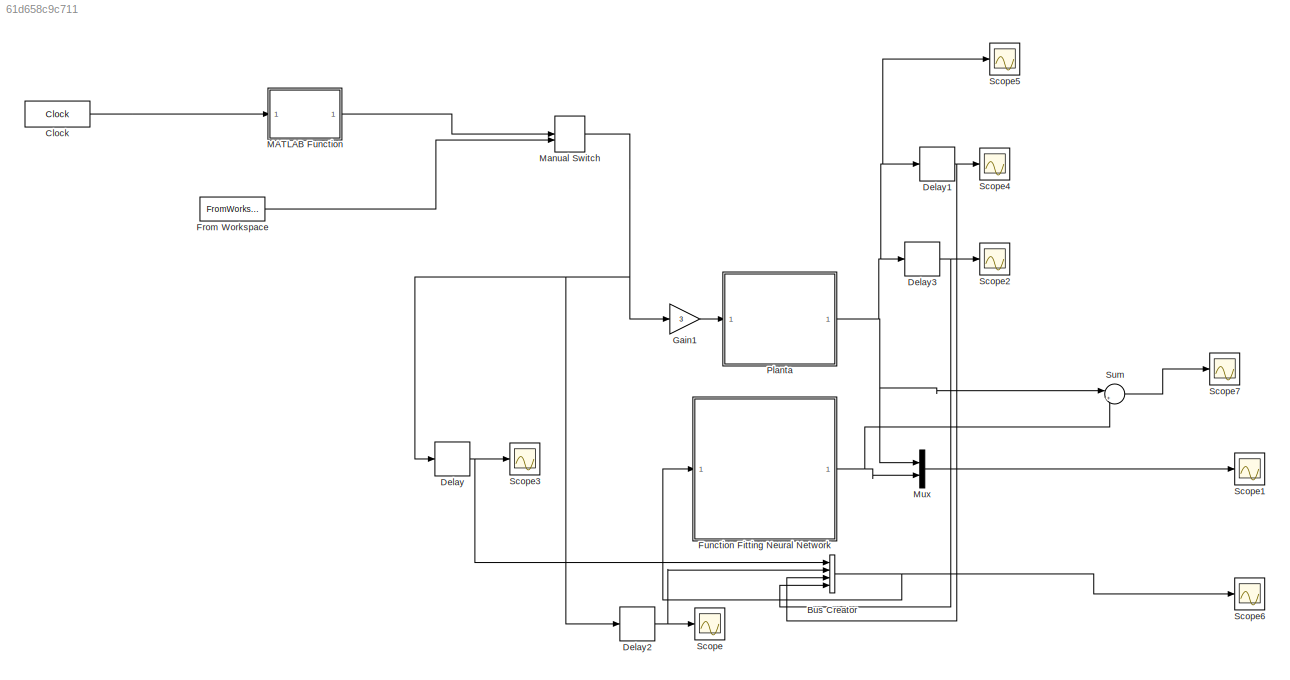
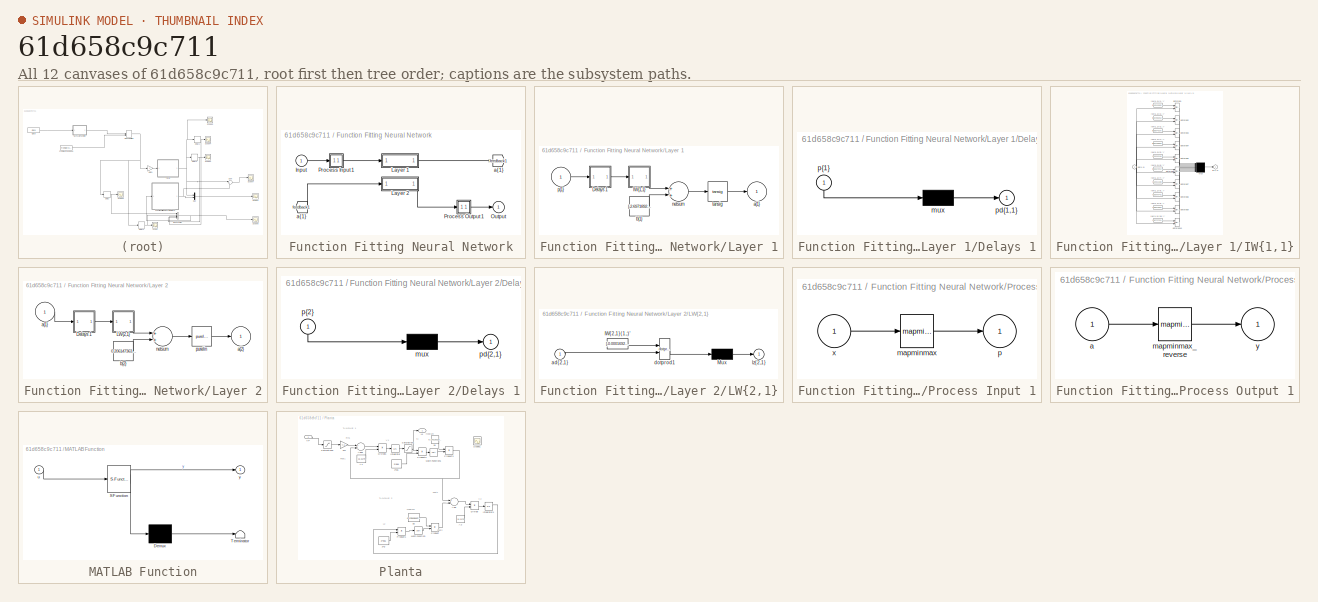
[diagram: thumbnail index - all 12 canvases of the model, root first then tree order]
MODEL slx_61d658c9c711
KIND model
CONFIG AbsTol = auto
CONFIG EnableMultiTasking = on
CONFIG FixedStep = 0.2
CONFIG MaxStep = auto
CONFIG MinStep = auto
CONFIG RelTol = 1e-3
CONFIG SampleTimeConstraint = Unconstrained
CONFIG Solver = FixedStepAuto
CONFIG SolverName = FixedStepAuto
CONFIG StartTime = 0.0
CONFIG StopTime = 10000
BLOCK [BusCreator] Bus Creator
  DisplayOption = bar
  InheritFromInputs = on
  Inputs = 4
  Ports = [4, 1]
BLOCK [Clock] Clock
  DisplayTime = on
BLOCK [Delay] Delay
  InitialCondition = 0
  InputPortMap = u0
  Ports = [1, 1]
BLOCK [Delay] Delay1
  InitialCondition = 0
  InputPortMap = u0
  Ports = [1, 1]
BLOCK [Delay] Delay2
  DelayLength = 1
  InitialCondition = 0
  InputPortMap = u0
  Ports = [1, 1]
BLOCK [Delay] Delay3
  DelayLength = 1
  InitialCondition = 0
  InputPortMap = u0
  Ports = [1, 1]
BLOCK [FromWorkspace] From Workspace
  SampleTime = 0
  VariableName = signal_struct
  ZeroCross = on
BLOCK [SubSystem] Function Fitting Neural Network
  Ports = [1, 1]
  RequestExecContextInheritance = off
  Variant = off
BLOCK [From] Function Fitting Neural Network/ a{1} 
  GotoTag = feedback1
BLOCK [Inport] Function Fitting Neural Network/Input
  IconDisplay = Port number
  PortDimensions = 4
BLOCK [SubSystem] Function Fitting Neural Network/Layer 1
  Ports = [1, 1]
  RequestExecContextInheritance = off
  Variant = off
BLOCK [SubSystem] Function Fitting Neural Network/Layer 1/Delays 1
  Ports = [1, 1]
  RequestExecContextInheritance = off
  Variant = off
BLOCK [Mux] Function Fitting Neural Network/Layer 1/Delays 1/mux
  Inputs = 1
  Ports = [1, 1]
BLOCK [Outport] Function Fitting Neural Network/Layer 1/Delays 1/pd{1,1}
  IconDisplay = Port number
BLOCK [Inport] Function Fitting Neural Network/Layer 1/Delays 1/p{1}
  IconDisplay = Port number
  PortDimensions = 4
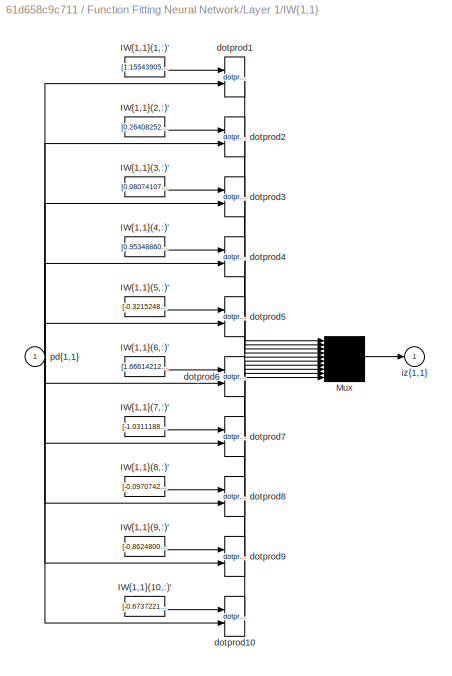
BLOCK [SubSystem] Function Fitting Neural Network/Layer 1/IW{1,1}
  Ports = [1, 1]
  RequestExecContextInheritance = off
  Variant = off
BLOCK [Constant] Function Fitting Neural Network/Layer 1/IW{1,1}/IW{1,1}(1,:)'
  Value = [1.1554390511201138;-1.8587518100061147;-0.1826285836356358;-1.1769062165732727]
BLOCK [Constant] Function Fitting Neural Network/Layer 1/IW{1,1}/IW{1,1}(10,:)'
  Value = [-0.67372211490125289;-2.0320906584328977;-1.1185733300726743;0.17942890660562086]
BLOCK [Constant] Function Fitting Neural Network/Layer 1/IW{1,1}/IW{1,1}(2,:)'
  Value = [0.26408252248880792;-0.19008344865909826;-1.3902923968655674;-0.27348600873152462]
BLOCK [Constant] Function Fitting Neural Network/Layer 1/IW{1,1}/IW{1,1}(3,:)'
  Value = [0.080741076316561772;-0.043698941983076868;-1.3949334431954188;0.94707719851262062]
BLOCK [Constant] Function Fitting Neural Network/Layer 1/IW{1,1}/IW{1,1}(4,:)'
  Value = [0.9534886023856961;-0.69194511398118685;1.512048816179554;-0.035706276300662435]
BLOCK [Constant] Function Fitting Neural Network/Layer 1/IW{1,1}/IW{1,1}(5,:)'
  Value = [-0.32152483049860753;0.19273825728909916;0.8548731041341191;-1.328618021087864]
BLOCK [Constant] Function Fitting Neural Network/Layer 1/IW{1,1}/IW{1,1}(6,:)'
  Value = [1.6661421235684524;-0.92893210679011906;1.3255465429769948;1.3658132609740954]
BLOCK [Constant] Function Fitting Neural Network/Layer 1/IW{1,1}/IW{1,1}(7,:)'
  Value = [-1.0311188521042554;0.6850486544127149;-1.1679875574701173;-0.38087349012047139]
BLOCK [Constant] Function Fitting Neural Network/Layer 1/IW{1,1}/IW{1,1}(8,:)'
  Value = [-0.097074226434714;0.1073578737696482;-0.92300508025662875;1.4479048523652209]
BLOCK [Constant] Function Fitting Neural Network/Layer 1/IW{1,1}/IW{1,1}(9,:)'
  Value = [-0.86248006445668224;0.6055788325390703;-1.9687748498055084;0.61981167689507055]
BLOCK [Mux] Function Fitting Neural Network/Layer 1/IW{1,1}/Mux
  Inputs = 10
  Ports = [10, 1]
BLOCK [Reference] Function Fitting Neural Network/Layer 1/IW{1,1}/dotprod1  REF=neural/Weight Functions/dotprod
  Ports = [2, 1]
  SourceBlock = neural/Weight Functions/dotprod
  SourceProductBaseCode = NN
  SourceProductName = Neural Network Toolbox
  SourceType = DOTPROD
BLOCK [Reference] Function Fitting Neural Network/Layer 1/IW{1,1}/dotprod10  REF=neural/Weight Functions/dotprod
  Ports = [2, 1]
  SourceBlock = neural/Weight Functions/dotprod
  SourceProductBaseCode = NN
  SourceProductName = Neural Network Toolbox
  SourceType = DOTPROD
BLOCK [Reference] Function Fitting Neural Network/Layer 1/IW{1,1}/dotprod2  REF=neural/Weight Functions/dotprod
  Ports = [2, 1]
  SourceBlock = neural/Weight Functions/dotprod
  SourceProductBaseCode = NN
  SourceProductName = Neural Network Toolbox
  SourceType = DOTPROD
BLOCK [Reference] Function Fitting Neural Network/Layer 1/IW{1,1}/dotprod3  REF=neural/Weight Functions/dotprod
  Ports = [2, 1]
  SourceBlock = neural/Weight Functions/dotprod
  SourceProductBaseCode = NN
  SourceProductName = Neural Network Toolbox
  SourceType = DOTPROD
BLOCK [Reference] Function Fitting Neural Network/Layer 1/IW{1,1}/dotprod4  REF=neural/Weight Functions/dotprod
  Ports = [2, 1]
  SourceBlock = neural/Weight Functions/dotprod
  SourceProductBaseCode = NN
  SourceProductName = Neural Network Toolbox
  SourceType = DOTPROD
BLOCK [Reference] Function Fitting Neural Network/Layer 1/IW{1,1}/dotprod5  REF=neural/Weight Functions/dotprod
  Ports = [2, 1]
  SourceBlock = neural/Weight Functions/dotprod
  SourceProductBaseCode = NN
  SourceProductName = Neural Network Toolbox
  SourceType = DOTPROD
BLOCK [Reference] Function Fitting Neural Network/Layer 1/IW{1,1}/dotprod6  REF=neural/Weight Functions/dotprod
  Ports = [2, 1]
  SourceBlock = neural/Weight Functions/dotprod
  SourceProductBaseCode = NN
  SourceProductName = Neural Network Toolbox
  SourceType = DOTPROD
BLOCK [Reference] Function Fitting Neural Network/Layer 1/IW{1,1}/dotprod7  REF=neural/Weight Functions/dotprod
  Ports = [2, 1]
  SourceBlock = neural/Weight Functions/dotprod
  SourceProductBaseCode = NN
  SourceProductName = Neural Network Toolbox
  SourceType = DOTPROD
BLOCK [Reference] Function Fitting Neural Network/Layer 1/IW{1,1}/dotprod8  REF=neural/Weight Functions/dotprod
  Ports = [2, 1]
  SourceBlock = neural/Weight Functions/dotprod
  SourceProductBaseCode = NN
  SourceProductName = Neural Network Toolbox
  SourceType = DOTPROD
BLOCK [Reference] Function Fitting Neural Network/Layer 1/IW{1,1}/dotprod9  REF=neural/Weight Functions/dotprod
  Ports = [2, 1]
  SourceBlock = neural/Weight Functions/dotprod
  SourceProductBaseCode = NN
  SourceProductName = Neural Network Toolbox
  SourceType = DOTPROD
BLOCK [Outport] Function Fitting Neural Network/Layer 1/IW{1,1}/iz{1,1}
  IconDisplay = Port number
BLOCK [Inport] Function Fitting Neural Network/Layer 1/IW{1,1}/pd{1,1}
  IconDisplay = Port number
  PortDimensions = 4
BLOCK [Outport] Function Fitting Neural Network/Layer 1/a{1}
  IconDisplay = Port number
  InitialOutput = [0;0;0;0;0;0;0;0;0;0]
BLOCK [Constant] Function Fitting Neural Network/Layer 1/b{1}
  Value = [-2.6971892401045712;-2.58812922836937;-0.42369525393465973;-1.2876822611119172;0.48355685475030985;0.093977343034396671;-0.85672853052520714;-0.96988345575553236;-1.8365294154329086;-2.6712107734220192]
BLOCK [Sum] Function Fitting Neural Network/Layer 1/netsum
  Inputs = 2
  Ports = [2, 1]
BLOCK [Inport] Function Fitting Neural Network/Layer 1/p{1}
  IconDisplay = Port number
  PortDimensions = 4
BLOCK [Reference] Function Fitting Neural Network/Layer 1/tansig  REF=neural/Transfer Functions/tansig
  Ports = [1, 1]
  SourceBlock = neural/Transfer Functions/tansig
  SourceProductBaseCode = NN
  SourceProductName = Neural Network Toolbox
  SourceType = TANSIG
BLOCK [SubSystem] Function Fitting Neural Network/Layer 2
  Ports = [1, 1]
  RequestExecContextInheritance = off
  Variant = off
BLOCK [SubSystem] Function Fitting Neural Network/Layer 2/Delays 1
  Ports = [1, 1]
  RequestExecContextInheritance = off
  Variant = off
BLOCK [Mux] Function Fitting Neural Network/Layer 2/Delays 1/mux
  Inputs = 1
  Ports = [1, 1]
BLOCK [Outport] Function Fitting Neural Network/Layer 2/Delays 1/pd{2,1}
  IconDisplay = Port number
BLOCK [Inport] Function Fitting Neural Network/Layer 2/Delays 1/p{2}
  IconDisplay = Port number
  PortDimensions = 10
BLOCK [SubSystem] Function Fitting Neural Network/Layer 2/LW{2,1}
  Ports = [1, 1]
  RequestExecContextInheritance = off
  Variant = off
BLOCK [Constant] Function Fitting Neural Network/Layer 2/LW{2,1}/IW{2,1}(1,:)'
  Value = [-0.00016928703466956177;-0.058389549820994639;-1.3922633566455667;-0.018733373629455024;-0.54063694805619611;0.0011029000885256631;-0.02286087710297352;0.94965831987303073;-0.09751958041961982;-2.3174804571644865e-05]
BLOCK [Mux] Function Fitting Neural Network/Layer 2/LW{2,1}/Mux
  Inputs = 1
  Ports = [1, 1]
BLOCK [Inport] Function Fitting Neural Network/Layer 2/LW{2,1}/ad{2,1}
  IconDisplay = Port number
  PortDimensions = 10
BLOCK [Reference] Function Fitting Neural Network/Layer 2/LW{2,1}/dotprod1  REF=neural/Weight Functions/dotprod
  Ports = [2, 1]
  SourceBlock = neural/Weight Functions/dotprod
  SourceProductBaseCode = NN
  SourceProductName = Neural Network Toolbox
  SourceType = DOTPROD
BLOCK [Outport] Function Fitting Neural Network/Layer 2/LW{2,1}/lz{2,1}
  IconDisplay = Port number
BLOCK [Inport] Function Fitting Neural Network/Layer 2/a{1} 
  IconDisplay = Port number
  PortDimensions = 10
BLOCK [Outport] Function Fitting Neural Network/Layer 2/a{2}
  IconDisplay = Port number
  InitialOutput = 0
BLOCK [Constant] Function Fitting Neural Network/Layer 2/b{2}
  Value = 0.20614736325459887
BLOCK [Sum] Function Fitting Neural Network/Layer 2/netsum
  Inputs = 2
  Ports = [2, 1]
BLOCK [Reference] Function Fitting Neural Network/Layer 2/purelin  REF=neural/Transfer Functions/purelin
  Ports = [1, 1]
  SourceBlock = neural/Transfer Functions/purelin
  SourceProductBaseCode = NN
  SourceProductName = Neural Network Toolbox
  SourceType = PURELIN
BLOCK [Outport] Function Fitting Neural Network/Output
  IconDisplay = Port number
  InitialOutput = 0
BLOCK [SubSystem] Function Fitting Neural Network/Process Input 1
  Ports = [1, 1]
  RequestExecContextInheritance = off
  Variant = off
BLOCK [Reference] Function Fitting Neural Network/Process Input 1/mapminmax  REF=neural/Processing Functions/mapminmax
  Ports = [1, 1]
  SourceBlock = neural/Processing Functions/mapminmax
  SourceProductBaseCode = NN
  SourceProductName = Neural Network Toolbox
  SourceType = MAPMINMAX Preprocess
BLOCK [Outport] Function Fitting Neural Network/Process Input 1/p
  IconDisplay = Port number
  PortDimensions = 4
BLOCK [Inport] Function Fitting Neural Network/Process Input 1/x
  IconDisplay = Port number
  PortDimensions = 4
BLOCK [SubSystem] Function Fitting Neural Network/Process Output 1
  Ports = [1, 1]
  RequestExecContextInheritance = off
  Variant = off
BLOCK [Inport] Function Fitting Neural Network/Process Output 1/a
  IconDisplay = Port number
  PortDimensions = 1
BLOCK [Reference] Function Fitting Neural Network/Process Output 1/mapminmax_reverse  REF=neural/Processing Functions/mapminmax_reverse
  Ports = [1, 1]
  SourceBlock = neural/Processing Functions/mapminmax_reverse
  SourceProductBaseCode = NN
  SourceProductName = Neural Network Toolbox
  SourceType = MAPMINMAX Reverse Process
BLOCK [Outport] Function Fitting Neural Network/Process Output 1/y
  IconDisplay = Port number
  PortDimensions = 1
BLOCK [Goto] Function Fitting Neural Network/a{1}
  GotoTag = feedback1
BLOCK [Gain] Gain1
  Gain = 3
  OutDataTypeStr = Inherit: Inherit via internal rule
  ParamDataTypeStr = Inherit: Inherit via internal rule
  SaturateOnIntegerOverflow = off
BLOCK [SubSystem] MATLAB Function
  ErrorFcn = Stateflow.Translate.translate
  PermitHierarchicalResolution = ExplicitOnly
  Ports = [1, 1]
  RequestExecContextInheritance = off
  SFBlockType = MATLAB Function
  TreatAsAtomicUnit = on
  Variant = off
BLOCK [Demux] MATLAB Function/ Demux 
  Outputs = 1
  Ports = [1, 1]
BLOCK [S-Function] MATLAB Function/ SFunction 
  EnableBusSupport = on
  FunctionName = sf_sfun
  PortCounts = [1 2]
  Ports = [1, 2]
  SFcnIsStateOwnerBlock = off
  SFunctionDeploymentMode = off
  Tag = Stateflow S-Function SIM_TANQUE_limpoteste 2
BLOCK [Terminator] MATLAB Function/ Terminator 
BLOCK [Inport] MATLAB Function/u
  IconDisplay = Port number
BLOCK [Outport] MATLAB Function/y
  IconDisplay = Port number
BLOCK [ManualSwitch] Manual Switch
  CurrentSetting = 0
BLOCK [Mux] Mux
  DisplayOption = bar
  Inputs = 2
  Ports = [2, 1]
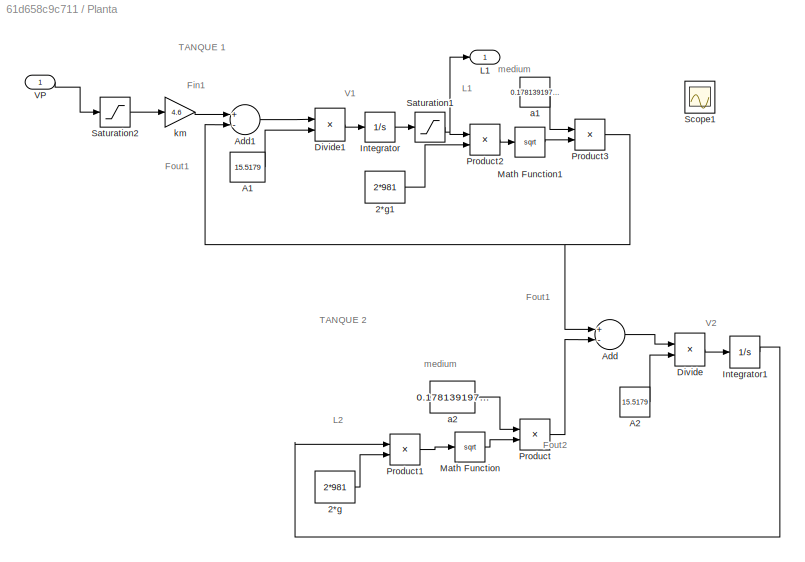
BLOCK [SubSystem] Planta
  Ports = [1, 1]
  RequestExecContextInheritance = off
  Variant = off
BLOCK [Constant] Planta/2*g
  Value = 2*981
BLOCK [Constant] Planta/2*g1
  Value = 2*981
BLOCK [Constant] Planta/A1
  Value = 15.5179
BLOCK [Constant] Planta/A2
  Value = 15.5179
BLOCK [Sum] Planta/Add
  InputSameDT = off
  Inputs = +-
  OutDataTypeStr = Inherit: Inherit via internal rule
  Ports = [2, 1]
  SaturateOnIntegerOverflow = off
BLOCK [Sum] Planta/Add1
  InputSameDT = off
  Inputs = +-
  OutDataTypeStr = Inherit: Inherit via internal rule
  Ports = [2, 1]
  SaturateOnIntegerOverflow = off
BLOCK [Product] Planta/Divide
  InputSameDT = off
  Inputs = */
  OutDataTypeStr = Inherit: Inherit via internal rule
  Ports = [2, 1]
  RndMeth = Floor
  SaturateOnIntegerOverflow = off
BLOCK [Product] Planta/Divide1
  InputSameDT = off
  Inputs = */
  OutDataTypeStr = Inherit: Inherit via internal rule
  Ports = [2, 1]
  RndMeth = Floor
  SaturateOnIntegerOverflow = off
BLOCK [Integrator] Planta/Integrator
  Ports = [1, 1]
BLOCK [Integrator] Planta/Integrator1
  LowerSaturationLimit = -30
  Ports = [1, 1]
  UpperSaturationLimit = 30
BLOCK [Outport] Planta/L1
  IconDisplay = Port number
BLOCK [Math] Planta/Math Function
  Operator = sqrt
  Ports = [1, 1]
BLOCK [Math] Planta/Math Function1
  Operator = sqrt
  Ports = [1, 1]
BLOCK [Product] Planta/Product
  InputSameDT = off
  OutDataTypeStr = Inherit: Inherit via internal rule
  Ports = [2, 1]
  SaturateOnIntegerOverflow = off
BLOCK [Product] Planta/Product1
  InputSameDT = off
  OutDataTypeStr = Inherit: Inherit via internal rule
  Ports = [2, 1]
  SaturateOnIntegerOverflow = off
BLOCK [Product] Planta/Product2
  InputSameDT = off
  OutDataTypeStr = Inherit: Inherit via internal rule
  Ports = [2, 1]
  SaturateOnIntegerOverflow = off
BLOCK [Product] Planta/Product3
  InputSameDT = off
  OutDataTypeStr = Inherit: Inherit via internal rule
  Ports = [2, 1]
  SaturateOnIntegerOverflow = off
BLOCK [Saturate] Planta/Saturation1
  InputPortMap = u0
  LowerLimit = 0
  Ports = [1, 1]
  UpperLimit = 30
BLOCK [Saturate] Planta/Saturation2
  InputPortMap = u0
  LowerLimit = -15
  Ports = [1, 1]
  UpperLimit = 15
BLOCK [Scope] Planta/Scope1
  NumInputPorts = 1
  Ports = [1]
  ScopeSpecificationString = C++SS(StrPVP('Location','[188, 390, 512, 629]'),StrPVP('Open','off'),MxPVP('AxesTitles',53,'struct(''axes1'',''%<SignalLabel>'')'),StrPVP('ShowLegends','off'),StrPVP('SaveName','ScopeData8'),StrPVP('DataFormat','StructureWithTime'),StrPVP('BlockParamSampleTime','0'),StrPVP('LimitDataPoints','on'),StrPVP('Decimation','1'),StrPVP('BlockParamSampleInput','off'))
BLOCK [Inport] Planta/VP
  IconDisplay = Port number
BLOCK [Constant] Planta/a1
  Value = 0.17813919765
BLOCK [Constant] Planta/a2
  Value = 0.17813919765
BLOCK [Gain] Planta/km
  Gain = 4.6
  OutDataTypeStr = Inherit: Inherit via internal rule
  ParamDataTypeStr = Inherit: Inherit via internal rule
  SaturateOnIntegerOverflow = off
BLOCK [Scope] Scope
  NumInputPorts = 1
  Ports = [1]
  ScopeSpecificationString = Simulink.scopes.TimeScopeBlockCfg('CurrentConfiguration', extmgr.ConfigurationSet(extmgr.Configuration('Core','General UI',true),extmgr.Configuration('Core','Source UI',true),extmgr.Configuration('Sources','WiredSimulink',true,'DataLogging',true,'DataLoggingVariableName','v1','DataLoggingLimitDataPoints',true,'DataLoggingSaveFormat','Array','DataLoggingMaxPoints','100000'),extmgr.Configuration('Vi...<+1541ch>
BLOCK [Scope] Scope1
  NumInputPorts = 1
  Ports = [1]
  ScopeSpecificationString = Simulink.scopes.TimeScopeBlockCfg('CurrentConfiguration', extmgr.ConfigurationSet(extmgr.Configuration('Core','General UI',true),extmgr.Configuration('Core','Source UI',true),extmgr.Configuration('Sources','WiredSimulink',true,'DataLoggingVariableName','saida','DataLoggingSaveFormat','Array'),extmgr.Configuration('Visuals','Time Domain',true,'SerializedDisplays',{struct('MinYLimReal','-1.12657','M...<+1501ch>
BLOCK [Scope] Scope2
  NumInputPorts = 1
  Ports = [1]
  ScopeSpecificationString = Simulink.scopes.TimeScopeBlockCfg('CurrentConfiguration', extmgr.ConfigurationSet(extmgr.Configuration('Core','General UI',true),extmgr.Configuration('Core','Source UI',true),extmgr.Configuration('Sources','WiredSimulink',true,'DataLoggingVariableName','h1','DataLoggingSaveFormat','Array','DataLogging',true,'DataLoggingLimitDataPoints',true,'DataLoggingMaxPoints','100000'),extmgr.Configuration('Vi...<+1549ch>
BLOCK [Scope] Scope3
  NumInputPorts = 1
  Ports = [1]
  ScopeSpecificationString = Simulink.scopes.TimeScopeBlockCfg('CurrentConfiguration', extmgr.ConfigurationSet(extmgr.Configuration('Core','General UI',true),extmgr.Configuration('Core','Source UI',true),extmgr.Configuration('Sources','WiredSimulink',true,'DataLogging',true,'DataLoggingVariableName','v2','DataLoggingLimitDataPoints',true,'DataLoggingSaveFormat','Array','DataLoggingMaxPoints','100000'),extmgr.Configuration('Vi...<+1540ch>
BLOCK [Scope] Scope4
  NumInputPorts = 1
  Ports = [1]
  ScopeSpecificationString = Simulink.scopes.TimeScopeBlockCfg('CurrentConfiguration', extmgr.ConfigurationSet(extmgr.Configuration('Core','General UI',true),extmgr.Configuration('Core','Source UI',true),extmgr.Configuration('Sources','WiredSimulink',true,'DataLogging',true,'DataLoggingVariableName','h2','DataLoggingLimitDataPoints',true,'DataLoggingSaveFormat','Array','DataLoggingMaxPoints','100000'),extmgr.Configuration('Vi...<+1541ch>
BLOCK [Scope] Scope5
  NumInputPorts = 1
  Ports = [1]
  ScopeSpecificationString = Simulink.scopes.TimeScopeBlockCfg('CurrentConfiguration', extmgr.ConfigurationSet(extmgr.Configuration('Core','General UI',true),extmgr.Configuration('Core','Source UI',true),extmgr.Configuration('Sources','WiredSimulink',true,'DataLoggingVariableName','h','DataLoggingSaveFormat','Array','DataLogging',true,'DataLoggingLimitDataPoints',true,'DataLoggingMaxPoints','100000'),extmgr.Configuration('Vis...<+1548ch>
BLOCK [Scope] Scope6
  NumInputPorts = 1
  Ports = [1]
  ScopeSpecificationString = Simulink.scopes.TimeScopeBlockCfg('CurrentConfiguration', extmgr.ConfigurationSet(extmgr.Configuration('Core','General UI',true),extmgr.Configuration('Core','Source UI',true),extmgr.Configuration('Sources','WiredSimulink',true,'DataLoggingVariableName','h3','DataLoggingSaveFormat','Array','DataLoggingMaxPoints','100000'),extmgr.Configuration('Visuals','Time Domain',true,'SerializedDisplays',{struc...<+1522ch>
BLOCK [Scope] Scope7
  NumInputPorts = 1
  Ports = [1]
  ScopeSpecificationString = Simulink.scopes.TimeScopeBlockCfg('CurrentConfiguration', extmgr.ConfigurationSet(extmgr.Configuration('Core','General UI',true),extmgr.Configuration('Core','Source UI',true),extmgr.Configuration('Sources','WiredSimulink',true,'DataLogging',true,'DataLoggingVariableName','erro','DataLoggingLimitDataPoints',true,'DataLoggingSaveFormat','Array','DataLoggingMaxPoints','100000'),extmgr.Configuration('...<+1544ch>
BLOCK [Sum] Sum
  IconShape = round
  InputSameDT = off
  Inputs = |+-
  OutDataTypeStr = Inherit: Inherit via internal rule
  Ports = [2, 1]
  SaturateOnIntegerOverflow = off
ANNOTATION Planta: Fin1
ANNOTATION Planta: Fout1
ANNOTATION Planta: Fout2
ANNOTATION Planta: L1
ANNOTATION Planta: L2
ANNOTATION Planta: TANQUE 1
ANNOTATION Planta: TANQUE 2
ANNOTATION Planta: V1
ANNOTATION Planta: V2
ANNOTATION Planta: medium
NET Bus Creator:1 -> Function Fitting Neural Network:1, Scope6:1
LINE Clock:1 -> MATLAB Function:1
NET Delay1:1 -> Bus Creator:3, Scope4:1
NET Delay2:1 -> Bus Creator:2, Scope:1
NET Delay3:1 -> Bus Creator:4, Scope2:1
NET Delay:1 -> Bus Creator:1, Scope3:1
LINE From Workspace:1 -> Manual Switch:2
LINE Function Fitting Neural Network/ a{1} :1 -> Function Fitting Neural Network/Layer 2:1
LINE Function Fitting Neural Network/Input:1 -> Function Fitting Neural Network/Process Input 1:1
LINE Function Fitting Neural Network/Layer 1/Delays 1/mux:1 -> Function Fitting Neural Network/Layer 1/Delays 1/pd{1,1}:1
LINE Function Fitting Neural Network/Layer 1/Delays 1/p{1}:1 -> Function Fitting Neural Network/Layer 1/Delays 1/mux:1
LINE Function Fitting Neural Network/Layer 1/Delays 1:1 -> Function Fitting Neural Network/Layer 1/IW{1,1}:1
LINE Function Fitting Neural Network/Layer 1/IW{1,1}/IW{1,1}(1,:)':1 -> Function Fitting Neural Network/Layer 1/IW{1,1}/dotprod1:1
LINE Function Fitting Neural Network/Layer 1/IW{1,1}/IW{1,1}(10,:)':1 -> Function Fitting Neural Network/Layer 1/IW{1,1}/dotprod10:1
LINE Function Fitting Neural Network/Layer 1/IW{1,1}/IW{1,1}(2,:)':1 -> Function Fitting Neural Network/Layer 1/IW{1,1}/dotprod2:1
LINE Function Fitting Neural Network/Layer 1/IW{1,1}/IW{1,1}(3,:)':1 -> Function Fitting Neural Network/Layer 1/IW{1,1}/dotprod3:1
LINE Function Fitting Neural Network/Layer 1/IW{1,1}/IW{1,1}(4,:)':1 -> Function Fitting Neural Network/Layer 1/IW{1,1}/dotprod4:1
LINE Function Fitting Neural Network/Layer 1/IW{1,1}/IW{1,1}(5,:)':1 -> Function Fitting Neural Network/Layer 1/IW{1,1}/dotprod5:1
LINE Function Fitting Neural Network/Layer 1/IW{1,1}/IW{1,1}(6,:)':1 -> Function Fitting Neural Network/Layer 1/IW{1,1}/dotprod6:1
LINE Function Fitting Neural Network/Layer 1/IW{1,1}/IW{1,1}(7,:)':1 -> Function Fitting Neural Network/Layer 1/IW{1,1}/dotprod7:1
LINE Function Fitting Neural Network/Layer 1/IW{1,1}/IW{1,1}(8,:)':1 -> Function Fitting Neural Network/Layer 1/IW{1,1}/dotprod8:1
LINE Function Fitting Neural Network/Layer 1/IW{1,1}/IW{1,1}(9,:)':1 -> Function Fitting Neural Network/Layer 1/IW{1,1}/dotprod9:1
LINE Function Fitting Neural Network/Layer 1/IW{1,1}/Mux:1 -> Function Fitting Neural Network/Layer 1/IW{1,1}/iz{1,1}:1
LINE Function Fitting Neural Network/Layer 1/IW{1,1}/dotprod10:1 -> Function Fitting Neural Network/Layer 1/IW{1,1}/Mux:10
LINE Function Fitting Neural Network/Layer 1/IW{1,1}/dotprod1:1 -> Function Fitting Neural Network/Layer 1/IW{1,1}/Mux:1
LINE Function Fitting Neural Network/Layer 1/IW{1,1}/dotprod2:1 -> Function Fitting Neural Network/Layer 1/IW{1,1}/Mux:2
LINE Function Fitting Neural Network/Layer 1/IW{1,1}/dotprod3:1 -> Function Fitting Neural Network/Layer 1/IW{1,1}/Mux:3
LINE Function Fitting Neural Network/Layer 1/IW{1,1}/dotprod4:1 -> Function Fitting Neural Network/Layer 1/IW{1,1}/Mux:4
LINE Function Fitting Neural Network/Layer 1/IW{1,1}/dotprod5:1 -> Function Fitting Neural Network/Layer 1/IW{1,1}/Mux:5
LINE Function Fitting Neural Network/Layer 1/IW{1,1}/dotprod6:1 -> Function Fitting Neural Network/Layer 1/IW{1,1}/Mux:6
LINE Function Fitting Neural Network/Layer 1/IW{1,1}/dotprod7:1 -> Function Fitting Neural Network/Layer 1/IW{1,1}/Mux:7
LINE Function Fitting Neural Network/Layer 1/IW{1,1}/dotprod8:1 -> Function Fitting Neural Network/Layer 1/IW{1,1}/Mux:8
LINE Function Fitting Neural Network/Layer 1/IW{1,1}/dotprod9:1 -> Function Fitting Neural Network/Layer 1/IW{1,1}/Mux:9
NET Function Fitting Neural Network/Layer 1/IW{1,1}/pd{1,1}:1 -> Function Fitting Neural Network/Layer 1/IW{1,1}/dotprod10:2, Function Fitting Neural Network/Layer 1/IW{1,1}/dotprod1:2, Function Fitting Neural Network/Layer 1/IW{1,1}/dotprod2:2, Function Fitting Neural Network/Layer 1/IW{1,1}/dotprod3:2, Function Fitting Neural Network/Layer 1/IW{1,1}/dotprod4:2, Function Fitting Neural Network/Layer 1/IW{1,1}/dotprod5:2, Function Fitting Neural Network/Layer 1/IW{1,1}/dotprod6:2, Function Fitting Neural Network/Layer 1/IW{1,1}/dotprod7:2, Function Fitting Neural Network/Layer 1/IW{1,1}/dotprod8:2, Function Fitting Neural Network/Layer 1/IW{1,1}/dotprod9:2
LINE Function Fitting Neural Network/Layer 1/IW{1,1}:1 -> Function Fitting Neural Network/Layer 1/netsum:1
LINE Function Fitting Neural Network/Layer 1/b{1}:1 -> Function Fitting Neural Network/Layer 1/netsum:2
LINE Function Fitting Neural Network/Layer 1/netsum:1 -> Function Fitting Neural Network/Layer 1/tansig:1
LINE Function Fitting Neural Network/Layer 1/p{1}:1 -> Function Fitting Neural Network/Layer 1/Delays 1:1
LINE Function Fitting Neural Network/Layer 1/tansig:1 -> Function Fitting Neural Network/Layer 1/a{1}:1
LINE Function Fitting Neural Network/Layer 1:1 -> Function Fitting Neural Network/a{1}:1
LINE Function Fitting Neural Network/Layer 2/Delays 1/mux:1 -> Function Fitting Neural Network/Layer 2/Delays 1/pd{2,1}:1
LINE Function Fitting Neural Network/Layer 2/Delays 1/p{2}:1 -> Function Fitting Neural Network/Layer 2/Delays 1/mux:1
LINE Function Fitting Neural Network/Layer 2/Delays 1:1 -> Function Fitting Neural Network/Layer 2/LW{2,1}:1
LINE Function Fitting Neural Network/Layer 2/LW{2,1}/IW{2,1}(1,:)':1 -> Function Fitting Neural Network/Layer 2/LW{2,1}/dotprod1:1
LINE Function Fitting Neural Network/Layer 2/LW{2,1}/Mux:1 -> Function Fitting Neural Network/Layer 2/LW{2,1}/lz{2,1}:1
LINE Function Fitting Neural Network/Layer 2/LW{2,1}/ad{2,1}:1 -> Function Fitting Neural Network/Layer 2/LW{2,1}/dotprod1:2
LINE Function Fitting Neural Network/Layer 2/LW{2,1}/dotprod1:1 -> Function Fitting Neural Network/Layer 2/LW{2,1}/Mux:1
LINE Function Fitting Neural Network/Layer 2/LW{2,1}:1 -> Function Fitting Neural Network/Layer 2/netsum:1
LINE Function Fitting Neural Network/Layer 2/a{1} :1 -> Function Fitting Neural Network/Layer 2/Delays 1:1
LINE Function Fitting Neural Network/Layer 2/b{2}:1 -> Function Fitting Neural Network/Layer 2/netsum:2
LINE Function Fitting Neural Network/Layer 2/netsum:1 -> Function Fitting Neural Network/Layer 2/purelin:1
LINE Function Fitting Neural Network/Layer 2/purelin:1 -> Function Fitting Neural Network/Layer 2/a{2}:1
LINE Function Fitting Neural Network/Layer 2:1 -> Function Fitting Neural Network/Process Output 1:1
LINE Function Fitting Neural Network/Process Input 1/mapminmax:1 -> Function Fitting Neural Network/Process Input 1/p:1
LINE Function Fitting Neural Network/Process Input 1/x:1 -> Function Fitting Neural Network/Process Input 1/mapminmax:1
LINE Function Fitting Neural Network/Process Input 1:1 -> Function Fitting Neural Network/Layer 1:1
LINE Function Fitting Neural Network/Process Output 1/a:1 -> Function Fitting Neural Network/Process Output 1/mapminmax_reverse:1
LINE Function Fitting Neural Network/Process Output 1/mapminmax_reverse:1 -> Function Fitting Neural Network/Process Output 1/y:1
LINE Function Fitting Neural Network/Process Output 1:1 -> Function Fitting Neural Network/Output:1
NET Function Fitting Neural Network:1 -> Mux:2, Sum:2
LINE Gain1:1 -> Planta:1
LINE MATLAB Function:1 -> Manual Switch:1
NET Manual Switch:1 -> Delay2:1, Delay:1, Gain1:1
LINE Mux:1 -> Scope1:1
LINE Planta/2*g1:1 -> Planta/Product2:2
LINE Planta/2*g:1 -> Planta/Product1:2
LINE Planta/A1:1 -> Planta/Divide1:2
LINE Planta/A2:1 -> Planta/Divide:2
LINE Planta/Add1:1 -> Planta/Divide1:1
LINE Planta/Add:1 -> Planta/Divide:1
LINE Planta/Divide1:1 -> Planta/Integrator:1
LINE Planta/Divide:1 -> Planta/Integrator1:1
LINE Planta/Integrator1:1 -> Planta/Product1:1
LINE Planta/Integrator:1 -> Planta/Saturation1:1
LINE Planta/Math Function1:1 -> Planta/Product3:2
LINE Planta/Math Function:1 -> Planta/Product:2
LINE Planta/Product1:1 -> Planta/Math Function:1
LINE Planta/Product2:1 -> Planta/Math Function1:1
NET Planta/Product3:1 -> Planta/Add1:2, Planta/Add:1
LINE Planta/Product:1 -> Planta/Add:2
NET Planta/Saturation1:1 -> Planta/L1:1, Planta/Product2:1
LINE Planta/Saturation2:1 -> Planta/km:1
LINE Planta/VP:1 -> Planta/Saturation2:1
LINE Planta/a1:1 -> Planta/Product3:1
LINE Planta/a2:1 -> Planta/Product:1
LINE Planta/km:1 -> Planta/Add1:1
NET Planta:1 -> Delay1:1, Delay3:1, Mux:1, Scope5:1, Sum:1
LINE Sum:1 -> Scope7:1
note: NET lines group one-source signal fan-out (src -> all destinations, sorted); 1:1 wires keep LINE
CHART MATLAB Function states=1 transitions=1
  STATE_LABEL 'eML_blk_kernel()'
  STATE_LABEL 'SCRIPT:\nfunction y = fcn(u)\n    persistent x;\n    persistent d;\n    if isempty(x)\n        d=round((rand(1)*90)+10);\n    end\n    \n    if isempty(x) || mod(u,d) == 0\n        d=round((rand(1)*90)+10);\n        x = rand(1)*3;\n    end\n    y = x;\n    disp(y);\nend\n'
